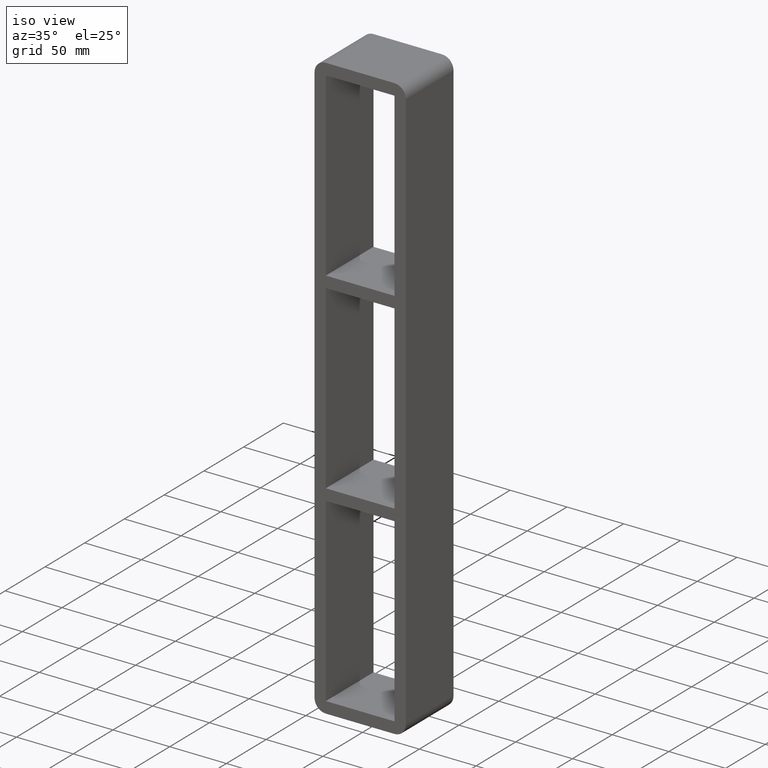
[diagram: clean part render]
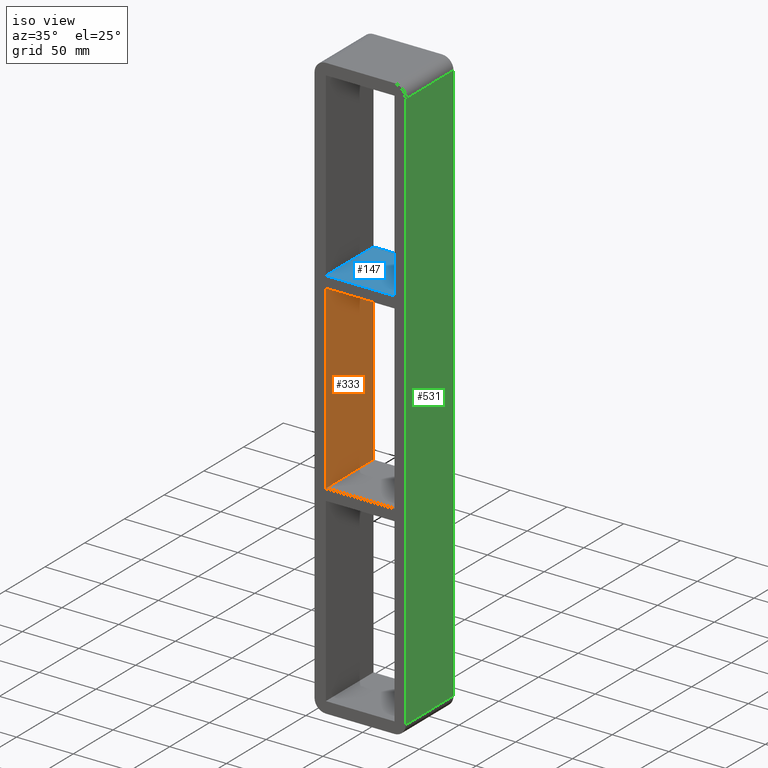
[diagram: same view with three faces highlighted in distinct colors, each labeled with its STEP entity id]
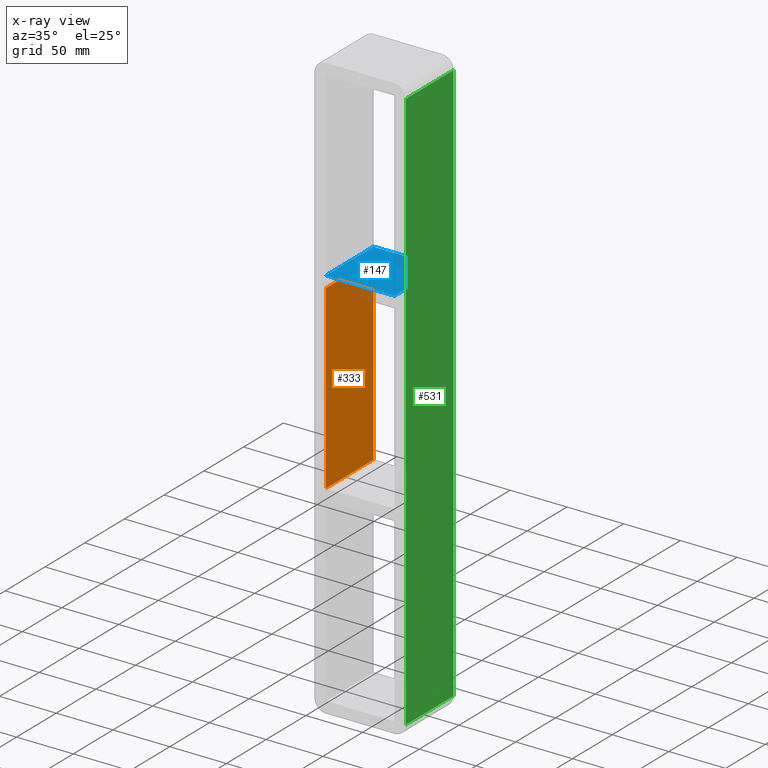
[diagram: x-ray of the same camera — body ghosted, the three highlighted faces saturated]
A machine part, iso view with three faces highlighted in distinct colors.
The next image is the same camera in x-ray (body ghosted, the three faces saturated) — at least one of them is partly hidden behind the body in this view.
Their STEP definitions:

[orange] entity #333 — the highlighted planar face has unit normal (-1, 0, 0).
#75=CARTESIAN_POINT('',(-30.249999999999652,-3.0,79.749999999990706));
#76=VERTEX_POINT('',#75);
#83=CARTESIAN_POINT('',(-30.249999999999652,57.0,79.749999999990706));
#84=VERTEX_POINT('',#83);
#85=CARTESIAN_POINT('',(-30.250000000000004,57.000000000000007,79.749999999990735));
#86=DIRECTION('',(0.0,-1.0,0.0));
#87=VECTOR('',#86,60.000000000000007);
#88=LINE('',#85,#87);
#89=EDGE_CURVE('',#84,#76,#88,.T.);
#286=CARTESIAN_POINT('',(-30.249999999999652,-3.0,-79.749999999999957));
#287=VERTEX_POINT('',#286);
#295=CARTESIAN_POINT('',(-30.249999999999652,57.0,-79.749999999999957));
#296=VERTEX_POINT('',#295);
#303=CARTESIAN_POINT('',(-30.250000000000004,-3.0,-79.749999999999957));
#304=DIRECTION('',(0.0,1.0,0.0));
#305=VECTOR('',#304,60.000000000000007);
#306=LINE('',#303,#305);
#307=EDGE_CURVE('',#287,#296,#306,.T.);
#312=CARTESIAN_POINT('',(-30.250000000000004,0.0,-249.25));
#313=DIRECTION('',(-1.0,0.0,0.0));
#314=DIRECTION('',(0.0,0.0,1.0));
#315=AXIS2_PLACEMENT_3D('',#312,#313,#314);
#316=PLANE('',#315);
#317=ORIENTED_EDGE('',*,*,#89,.T.);
#318=CARTESIAN_POINT('',(-30.250000000000004,-3.0,-79.749999999999943));
#319=DIRECTION('',(0.0,0.0,1.0));
#320=VECTOR('',#319,159.49999999999062);
#321=LINE('',#318,#320);
#322=EDGE_CURVE('',#287,#76,#321,.T.);
#323=ORIENTED_EDGE('',*,*,#322,.F.);
#324=ORIENTED_EDGE('',*,*,#307,.T.);
#325=CARTESIAN_POINT('',(-30.250000000000004,57.0,79.749999999990678));
#326=DIRECTION('',(0.0,0.0,-1.0));
#327=VECTOR('',#326,159.49999999999062);
#328=LINE('',#325,#327);
#329=EDGE_CURVE('',#84,#296,#328,.T.);
#330=ORIENTED_EDGE('',*,*,#329,.F.);
#331=EDGE_LOOP('',(#317,#323,#324,#330));
#332=FACE_OUTER_BOUND('',#331,.T.);
#333=ADVANCED_FACE('',(#332),#316,.F.);

[blue] entity #147 — the highlighted planar face has unit normal (0, 0, 1).
#108=CARTESIAN_POINT('',(-30.249999999999652,-3.0,89.750000000000085));
#109=DIRECTION('',(0.0,0.0,1.0));
#110=DIRECTION('',(1.0,0.0,0.0));
#111=AXIS2_PLACEMENT_3D('',#108,#109,#110);
#112=PLANE('',#111);
#113=CARTESIAN_POINT('',(-30.249999999999652,-3.0,89.750000000000085));
#114=VERTEX_POINT('',#113);
#115=CARTESIAN_POINT('',(30.249999999999897,-3.0,89.750000000000085));
#116=VERTEX_POINT('',#115);
#117=CARTESIAN_POINT('',(-30.249999999999652,-3.0,89.750000000000085));
#118=DIRECTION('',(1.0,0.0,0.0));
#119=VECTOR('',#118,60.499999999999545);
#120=LINE('',#117,#119);
#121=EDGE_CURVE('',#114,#116,#120,.T.);
#122=ORIENTED_EDGE('',*,*,#121,.T.);
#123=CARTESIAN_POINT('',(30.249999999999893,57.0,89.750000000000085));
#124=VERTEX_POINT('',#123);
#125=CARTESIAN_POINT('',(30.250000000000004,57.000000000000007,89.750000000000085));
#126=DIRECTION('',(0.0,-1.0,0.0));
#127=VECTOR('',#126,60.000000000000007);
#128=LINE('',#125,#127);
#129=EDGE_CURVE('',#124,#116,#128,.T.);
#130=ORIENTED_EDGE('',*,*,#129,.F.);
#131=CARTESIAN_POINT('',(-30.249999999999652,57.0,89.750000000000085));
#132=VERTEX_POINT('',#131);
#133=CARTESIAN_POINT('',(-30.249999999999652,57.0,89.750000000000085));
#134=DIRECTION('',(1.0,0.0,0.0));
#135=VECTOR('',#134,60.499999999999545);
#136=LINE('',#133,#135);
#137=EDGE_CURVE('',#132,#124,#136,.T.);
#138=ORIENTED_EDGE('',*,*,#137,.F.);
#139=CARTESIAN_POINT('',(-30.250000000000004,-3.0,89.750000000000071));
#140=DIRECTION('',(0.0,1.0,0.0));
#141=VECTOR('',#140,60.000000000000007);
#142=LINE('',#139,#141);
#143=EDGE_CURVE('',#114,#132,#142,.T.);
#144=ORIENTED_EDGE('',*,*,#143,.F.);
#145=EDGE_LOOP('',(#122,#130,#138,#144));
#146=FACE_OUTER_BOUND('',#145,.T.);
#147=ADVANCED_FACE('',(#146),#112,.T.);

[green] entity #531 — the highlighted planar face has unit normal (1, 0, 0).
#372=CARTESIAN_POINT('',(40.25,57.0,-249.25));
#373=VERTEX_POINT('',#372);
#381=CARTESIAN_POINT('',(40.25,-3.0,-249.25));
#382=VERTEX_POINT('',#381);
#383=CARTESIAN_POINT('',(40.25,57.0,-249.25));
#384=DIRECTION('',(0.0,-1.0,0.0));
#385=VECTOR('',#384,60.0);
#386=LINE('',#383,#385);
#387=EDGE_CURVE('',#373,#382,#386,.T.);
#413=CARTESIAN_POINT('',(40.25,-3.0,249.25));
#414=VERTEX_POINT('',#413);
#415=CARTESIAN_POINT('',(40.25,-3.0,-249.25));
#416=DIRECTION('',(0.0,0.0,1.0));
#417=VECTOR('',#416,498.5);
#418=LINE('',#415,#417);
#419=EDGE_CURVE('',#382,#414,#418,.T.);
#508=CARTESIAN_POINT('',(40.25,0.0,259.25));
#509=DIRECTION('',(1.0,0.0,0.0));
#510=DIRECTION('',(0.0,0.0,-1.0));
#511=AXIS2_PLACEMENT_3D('',#508,#509,#510);
#512=PLANE('',#511);
#513=ORIENTED_EDGE('',*,*,#387,.F.);
#514=CARTESIAN_POINT('',(40.25,57.0,249.25));
#515=VERTEX_POINT('',#514);
#516=CARTESIAN_POINT('',(40.25,57.0,249.25));
#517=DIRECTION('',(0.0,0.0,-1.0));
#518=VECTOR('',#517,498.5);
#519=LINE('',#516,#518);
#520=EDGE_CURVE('',#515,#373,#519,.T.);
#521=ORIENTED_EDGE('',*,*,#520,.F.);
#522=CARTESIAN_POINT('',(40.25,-3.0,249.25));
#523=DIRECTION('',(0.0,1.0,0.0));
#524=VECTOR('',#523,60.0);
#525=LINE('',#522,#524);
#526=EDGE_CURVE('',#414,#515,#525,.T.);
#527=ORIENTED_EDGE('',*,*,#526,.F.);
#528=ORIENTED_EDGE('',*,*,#419,.F.);
#529=EDGE_LOOP('',(#513,#521,#527,#528));
#530=FACE_OUTER_BOUND('',#529,.T.);
#531=ADVANCED_FACE('',(#530),#512,.T.);